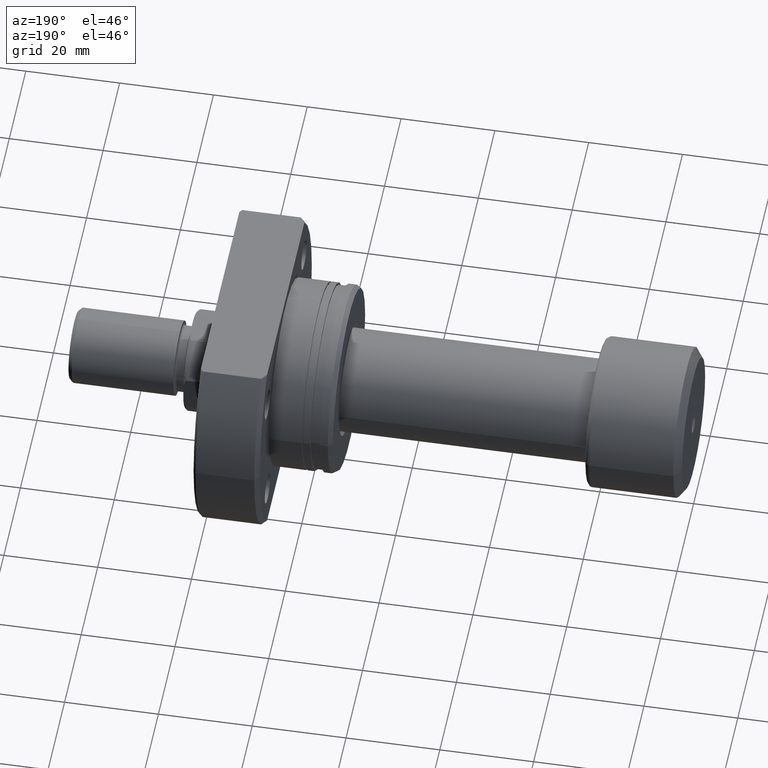
[diagram: clean part render]
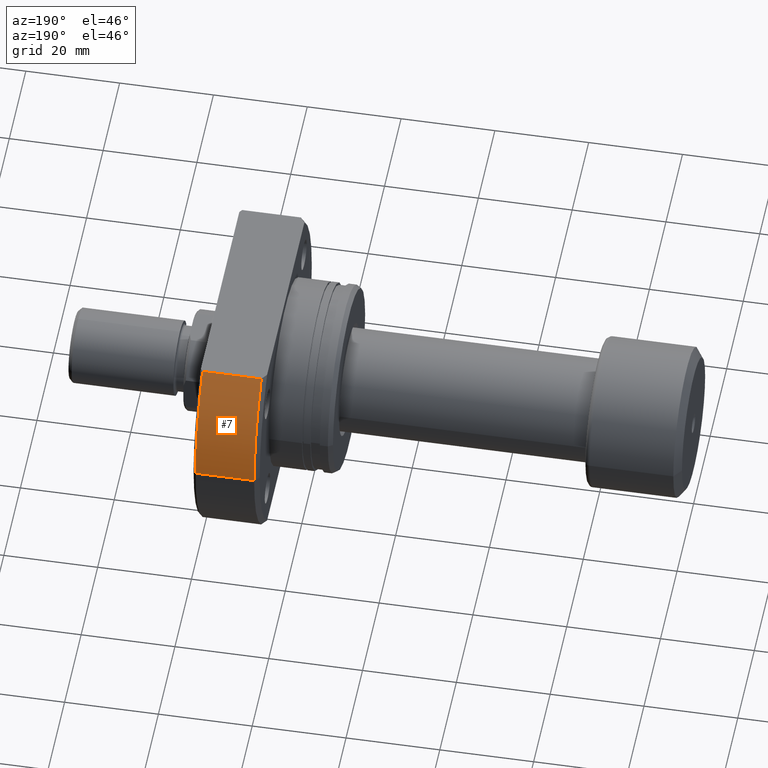
[diagram: same view with one face highlighted and labeled with its STEP entity id]
A machine part, auxiliary view. The second image highlights one B-rep face of the part: STEP entity #7.
In plain terms, the highlighted cylindrical surface (partial cylindrical patch) has radius 32.5 mm, axis along (1, 0, 0).
Its self-contained STEP definition (entity closure, byte-faithful):
#7 = ADVANCED_FACE ( 'NONE', ( #31 ), #2820, .T. ) ;
#11 = DIRECTION ( 'NONE',  ( 0.000000000000000000, 1.000000000000000000, 0.000000000000000000 ) ) ;
#13 = EDGE_CURVE ( 'NONE', #3329, #3541, #2516, .T. ) ;
#31 = FACE_OUTER_BOUND ( 'NONE', #278, .T. ) ;
#262 = CARTESIAN_POINT ( 'NONE',  ( 14.49999999999999289, 23.92174742781164198, 22.00000000000000000 ) ) ;
#276 = DIRECTION ( 'NONE',  ( 1.000000000000000000, 1.335978326342566810E-17, -0.000000000000000000 ) ) ;
#278 = EDGE_LOOP ( 'NONE', ( #2216, #3497, #663, #3366 ) ) ;
#547 = EDGE_CURVE ( 'NONE', #3541, #2004, #931, .T. ) ;
#600 = CARTESIAN_POINT ( 'NONE',  ( 27.50000000000000355, 32.49999999999991473, 0.000000000000000000 ) ) ;
#640 = AXIS2_PLACEMENT_3D ( 'NONE', #664, #718, #1857 ) ;
#663 = ORIENTED_EDGE ( 'NONE', *, *, #680, .T. ) ;
#664 = CARTESIAN_POINT ( 'NONE',  ( 14.49999999999999289, 1.937168573196720858E-16, 0.000000000000000000 ) ) ;
#680 = EDGE_CURVE ( 'NONE', #3048, #2004, #2674, .T. ) ;
#718 = DIRECTION ( 'NONE',  ( 1.000000000000000000, 1.335978326342566810E-17, -0.000000000000000000 ) ) ;
#752 = AXIS2_PLACEMENT_3D ( 'NONE', #1735, #3136, #2308 ) ;
#810 = VECTOR ( 'NONE', #2104, 1000.000000000000000 ) ;
#931 = CIRCLE ( 'NONE', #752, 32.49999999999991473 ) ;
#1417 = CARTESIAN_POINT ( 'NONE',  ( 27.50000000000000355, 3.673940397442059375E-16, 0.000000000000000000 ) ) ;
#1436 = CARTESIAN_POINT ( 'NONE',  ( 27.00000000000007105, 23.92174742781127961, 22.00000000000000000 ) ) ;
#1735 = CARTESIAN_POINT ( 'NONE',  ( 27.00000000000008527, 3.607141481124941789E-16, 0.000000000000000000 ) ) ;
#1748 = EDGE_CURVE ( 'NONE', #3329, #3048, #2544, .T. ) ;
#1857 = DIRECTION ( 'NONE',  ( 0.000000000000000000, 1.000000000000000000, 0.000000000000000000 ) ) ;
#2004 = VERTEX_POINT ( 'NONE', #1436 ) ;
#2104 = DIRECTION ( 'NONE',  ( 1.000000000000000000, -2.886466111666351885E-14, -0.000000000000000000 ) ) ;
#2216 = ORIENTED_EDGE ( 'NONE', *, *, #13, .F. ) ;
#2271 = CARTESIAN_POINT ( 'NONE',  ( 27.00000000000008527, 32.49999999999991473, 0.000000000000000000 ) ) ;
#2308 = DIRECTION ( 'NONE',  ( 0.000000000000000000, 1.000000000000000000, 0.000000000000000000 ) ) ;
#2409 = VECTOR ( 'NONE', #276, 1000.000000000000000 ) ;
#2516 = LINE ( 'NONE', #600, #2409 ) ;
#2544 = CIRCLE ( 'NONE', #640, 32.49999999999991473 ) ;
#2674 = LINE ( 'NONE', #3583, #810 ) ;
#2820 = CYLINDRICAL_SURFACE ( 'NONE', #3368, 32.49999999999991473 ) ;
#2956 = CARTESIAN_POINT ( 'NONE',  ( 14.49999999999999289, 32.49999999999991473, 0.000000000000000000 ) ) ;
#3048 = VERTEX_POINT ( 'NONE', #262 ) ;
#3136 = DIRECTION ( 'NONE',  ( 1.000000000000000000, 1.335978326342566810E-17, -0.000000000000000000 ) ) ;
#3155 = DIRECTION ( 'NONE',  ( 1.000000000000000000, 1.335978326342566810E-17, -0.000000000000000000 ) ) ;
#3329 = VERTEX_POINT ( 'NONE', #2956 ) ;
#3366 = ORIENTED_EDGE ( 'NONE', *, *, #547, .F. ) ;
#3368 = AXIS2_PLACEMENT_3D ( 'NONE', #1417, #3155, #11 ) ;
#3497 = ORIENTED_EDGE ( 'NONE', *, *, #1748, .T. ) ;
#3541 = VERTEX_POINT ( 'NONE', #2271 ) ;
#3583 = CARTESIAN_POINT ( 'NONE',  ( -2.428612866367529932E-13, 23.92174742781206120, 22.00000000000000000 ) ) ;